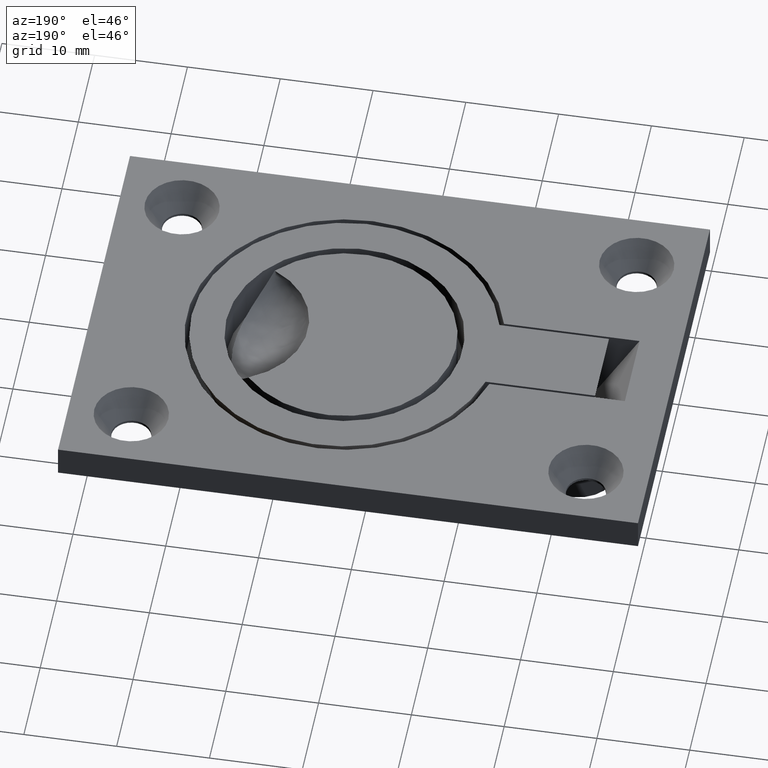
[diagram: clean part render]
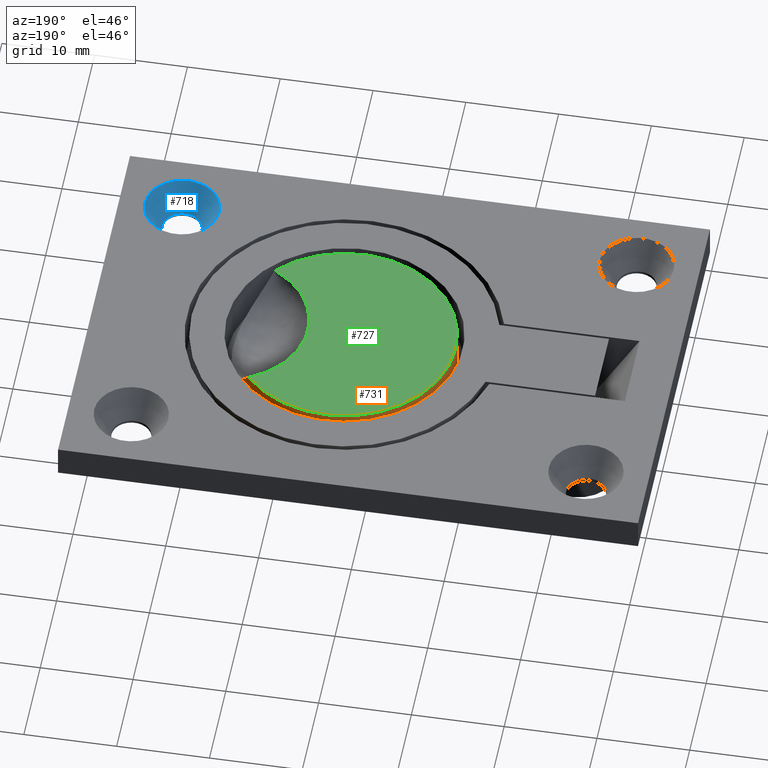
[diagram: same view with three faces highlighted in distinct colors, each labeled with its STEP entity id]
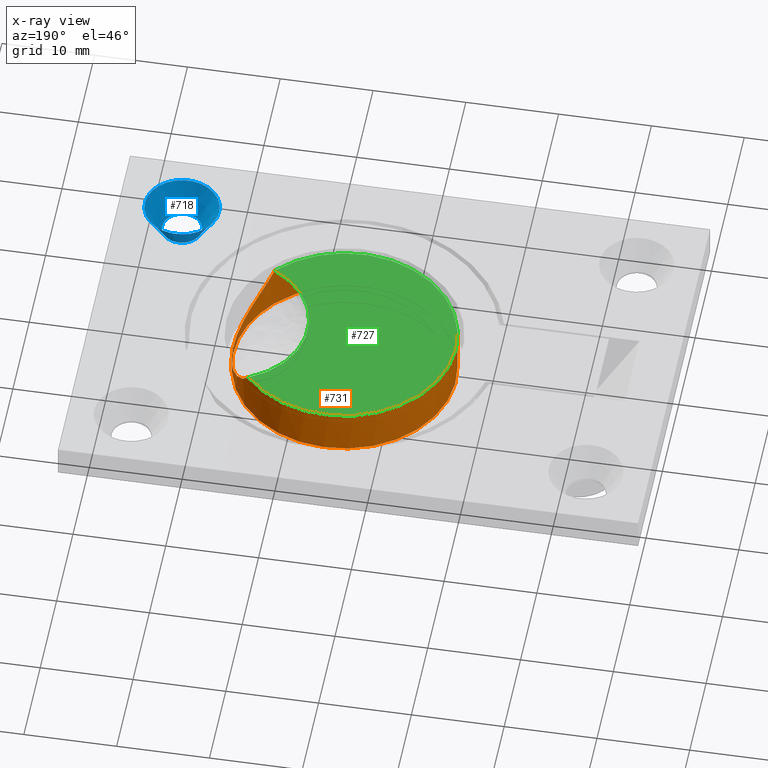
[diagram: x-ray of the same camera — body ghosted, the three highlighted faces saturated]
A machine part, auxiliary view with three faces highlighted in distinct colors.
The next image is the same camera in x-ray (body ghosted, the three faces saturated) — at least one of them is partly hidden behind the body in this view.
Their STEP definitions:

[orange] entity #731 — the highlighted cylindrical surface (bore or boss wall) has radius 12 mm, axis along (0, 0, -1).
#25=B_SPLINE_CURVE_WITH_KNOTS('',3,(#1157,#1158,#1159,#1160,#1161,#1162,
#1163,#1164,#1165,#1166,#1167,#1168,#1169,#1170,#1171,#1172,#1173,#1174,
#1175,#1176,#1177,#1178),.UNSPECIFIED.,.F.,.F.,(4,2,2,2,2,2,2,2,2,2,4),
(-0.00108928091295515,0.,0.162507191926981,0.325539082900519,0.65250393345308,
0.993488546076933,1.33447315870079,1.6614380092534,1.82446990022695,1.98697709215395,
1.98806637306688),.UNSPECIFIED.);
#37=FACE_BOUND('',#159,.T.);
#102=FACE_OUTER_BOUND('',#158,.T.);
#158=EDGE_LOOP('',(#550,#551));
#159=EDGE_LOOP('',(#552));
#223=CIRCLE('',#794,12.);
#227=CIRCLE('',#802,12.);
#366=VERTEX_POINT('',#1155);
#367=VERTEX_POINT('',#1156);
#371=VERTEX_POINT('',#1216);
#436=EDGE_CURVE('',#366,#367,#25,.T.);
#438=EDGE_CURVE('',#366,#367,#223,.T.);
#444=EDGE_CURVE('',#371,#371,#227,.T.);
#550=ORIENTED_EDGE('',*,*,#436,.T.);
#551=ORIENTED_EDGE('',*,*,#438,.F.);
#552=ORIENTED_EDGE('',*,*,#444,.T.);
#708=CYLINDRICAL_SURFACE('',#801,12.);
#731=ADVANCED_FACE('',(#102,#37),#708,.T.);
#794=AXIS2_PLACEMENT_3D('',#1181,#915,#916);
#801=AXIS2_PLACEMENT_3D('',#1215,#929,#930);
#802=AXIS2_PLACEMENT_3D('',#1217,#931,#932);
#915=DIRECTION('center_axis',(0.,0.,1.));
#916=DIRECTION('ref_axis',(-1.,0.,0.));
#929=DIRECTION('center_axis',(0.,0.,-1.));
#930=DIRECTION('ref_axis',(-1.,0.,0.));
#931=DIRECTION('center_axis',(0.,0.,1.));
#932=DIRECTION('ref_axis',(-1.,0.,0.));
#1155=CARTESIAN_POINT('',(13.1942719099992,8.,3.5));
#1156=CARTESIAN_POINT('',(13.1942719099992,-8.,3.5));
#1157=CARTESIAN_POINT('Ctrl Pts',(13.1942719099992,8.,3.5));
#1158=CARTESIAN_POINT('Ctrl Pts',(13.1956950192209,7.9984089155204,3.49706283992739));
#1159=CARTESIAN_POINT('Ctrl Pts',(13.197119150352,7.99681583411318,3.49412725773015));
#1160=CARTESIAN_POINT('Ctrl Pts',(13.4111586609414,7.7572549638865,3.053476263451));
#1161=CARTESIAN_POINT('Ctrl Pts',(13.6453779915409,7.47581530841468,2.65264753189655));
#1162=CARTESIAN_POINT('Ctrl Pts',(14.1244668938401,6.83058465003972,1.92226132233986));
#1163=CARTESIAN_POINT('Ctrl Pts',(14.3677898144894,6.46855386537403,1.59513119503526));
#1164=CARTESIAN_POINT('Ctrl Pts',(15.0677319907356,5.27530133342076,0.721336079455621));
#1165=CARTESIAN_POINT('Ctrl Pts',(15.4834331413381,4.35046070659984,0.29133657314006));
#1166=CARTESIAN_POINT('Ctrl Pts',(16.0834304307842,2.27689606352018,-0.307650538591659));
#1167=CARTESIAN_POINT('Ctrl Pts',(16.25,1.14467079009252,-0.457590913672074));
#1168=CARTESIAN_POINT('Ctrl Pts',(16.25,-1.14467079009253,-0.457590913672073));
#1169=CARTESIAN_POINT('Ctrl Pts',(16.0834304307842,-2.27689606352019,-0.307650538591655));
#1170=CARTESIAN_POINT('Ctrl Pts',(15.4834331413381,-4.35046070659997,0.2913365731401));
#1171=CARTESIAN_POINT('Ctrl Pts',(15.0677319907355,-5.27530133342102,0.721336079455738));
#1172=CARTESIAN_POINT('Ctrl Pts',(14.3677898144892,-6.46855386537439,1.59513119503556));
#1173=CARTESIAN_POINT('Ctrl Pts',(14.1244668938399,-6.8305846500401,1.92226132234023));
#1174=CARTESIAN_POINT('Ctrl Pts',(13.6453779915405,-7.47581530841509,2.65264753189708));
#1175=CARTESIAN_POINT('Ctrl Pts',(13.4111586609411,-7.75725496388691,3.05347626345162));
#1176=CARTESIAN_POINT('Ctrl Pts',(13.1971191503517,-7.99681583411353,3.4941272577308));
#1177=CARTESIAN_POINT('Ctrl Pts',(13.1956950192209,-7.99840891552044,3.49706283992747));
#1178=CARTESIAN_POINT('Ctrl Pts',(13.1942719099992,-8.,3.5));
#1181=CARTESIAN_POINT('Origin',(4.25,0.,3.5));
#1215=CARTESIAN_POINT('Origin',(4.25,0.,3.5));
#1216=CARTESIAN_POINT('',(16.25,1.46957615897682E-15,-1.5));
#1217=CARTESIAN_POINT('Origin',(4.25,0.,-1.5));

[blue] entity #718 — the highlighted conical surface has half-angle 30 deg.
#29=FACE_BOUND('',#138,.T.);
#54=CONICAL_SURFACE('',#772,3.075,30.);
#89=FACE_OUTER_BOUND('',#137,.T.);
#137=EDGE_LOOP('',(#521));
#138=EDGE_LOOP('',(#522));
#210=CIRCLE('',#773,4.);
#211=CIRCLE('',#774,2.15);
#354=VERTEX_POINT('',#1099);
#355=VERTEX_POINT('',#1101);
#424=EDGE_CURVE('',#354,#354,#210,.T.);
#425=EDGE_CURVE('',#355,#355,#211,.T.);
#521=ORIENTED_EDGE('',*,*,#424,.F.);
#522=ORIENTED_EDGE('',*,*,#425,.F.);
#718=ADVANCED_FACE('',(#89,#29),#54,.F.);
#772=AXIS2_PLACEMENT_3D('',#1098,#871,#872);
#773=AXIS2_PLACEMENT_3D('',#1100,#873,#874);
#774=AXIS2_PLACEMENT_3D('',#1102,#875,#876);
#871=DIRECTION('center_axis',(0.,0.,1.));
#872=DIRECTION('ref_axis',(1.,0.,0.));
#873=DIRECTION('center_axis',(0.,0.,-1.));
#874=DIRECTION('ref_axis',(1.,0.,0.));
#875=DIRECTION('center_axis',(0.,0.,1.));
#876=DIRECTION('ref_axis',(1.,0.,0.));
#1098=CARTESIAN_POINT('Origin',(24.5,-15.5,1.89785300299879));
#1099=CARTESIAN_POINT('',(28.5,-15.5,3.5));
#1100=CARTESIAN_POINT('Origin',(24.5,-15.5,3.5));
#1101=CARTESIAN_POINT('',(26.65,-15.5,0.295706005997577));
#1102=CARTESIAN_POINT('Origin',(24.5,-15.5,0.295706005997584));

[green] entity #727 — the highlighted planar face has unit normal (0, 0, 1).
#62=PLANE('',#793);
#98=FACE_OUTER_BOUND('',#154,.T.);
#154=EDGE_LOOP('',(#539,#540));
#222=CIRCLE('',#792,8.9);
#223=CIRCLE('',#794,12.);
#366=VERTEX_POINT('',#1155);
#367=VERTEX_POINT('',#1156);
#437=EDGE_CURVE('',#367,#366,#222,.T.);
#438=EDGE_CURVE('',#366,#367,#223,.T.);
#539=ORIENTED_EDGE('',*,*,#437,.T.);
#540=ORIENTED_EDGE('',*,*,#438,.T.);
#727=ADVANCED_FACE('',(#98),#62,.T.);
#792=AXIS2_PLACEMENT_3D('',#1179,#911,#912);
#793=AXIS2_PLACEMENT_3D('',#1180,#913,#914);
#794=AXIS2_PLACEMENT_3D('',#1181,#915,#916);
#911=DIRECTION('center_axis',(0.,0.,-1.));
#912=DIRECTION('ref_axis',(-1.,-6.93889390390723E-17,0.));
#913=DIRECTION('center_axis',(0.,0.,1.));
#914=DIRECTION('ref_axis',(1.,0.,0.));
#915=DIRECTION('center_axis',(0.,0.,1.));
#916=DIRECTION('ref_axis',(-1.,0.,0.));
#1155=CARTESIAN_POINT('',(13.1942719099992,8.,3.5));
#1156=CARTESIAN_POINT('',(13.1942719099992,-8.,3.5));
#1179=CARTESIAN_POINT('Origin',(17.0942719099992,-6.93889390390699E-18,
3.5));
#1180=CARTESIAN_POINT('Origin',(0.,0.,3.5));
#1181=CARTESIAN_POINT('Origin',(4.25,0.,3.5));